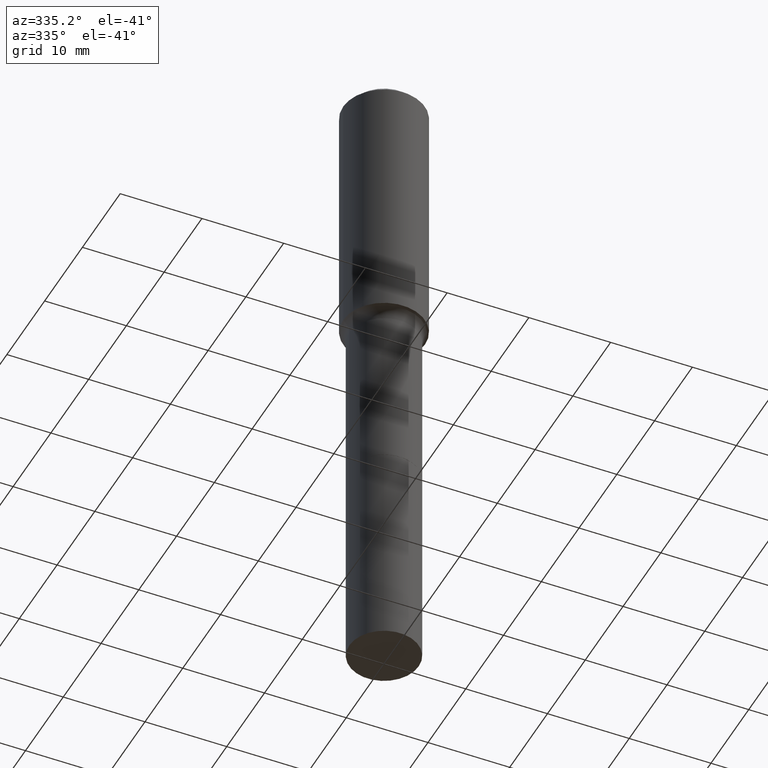
[diagram: clean part render]
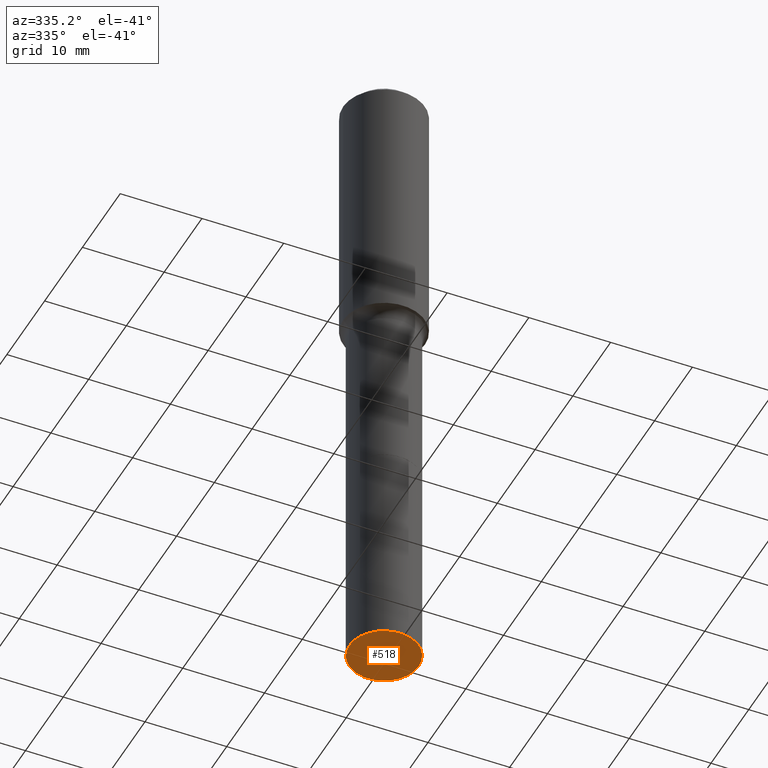
[diagram: same view with one face highlighted and labeled with its STEP entity id]
A machine part, auxiliary view. The second image highlights one B-rep face of the part: STEP entity #518.
In plain terms, the highlighted planar face has unit normal (0, -0, -1).
Its self-contained STEP definition (entity closure, byte-faithful):
#4 = ORIENTED_EDGE ( 'NONE', *, *, #29, .F. ) ;
#22 = CIRCLE ( 'NONE', #412, 0.1673000000000002263 ) ;
#23 = DIRECTION ( 'NONE',  ( 1.000000000000000000, -6.982962677686271444E-15, 0.000000000000000000 ) ) ;
#29 = EDGE_CURVE ( 'NONE', #458, #298, #22, .T. ) ;
#103 = CARTESIAN_POINT ( 'NONE',  ( 7.702248551960706711E-29, -1.099676962482037231E-14, -3.149600000000000399 ) ) ;
#151 = EDGE_LOOP ( 'NONE', ( #494, #4 ) ) ;
#157 = DIRECTION ( 'NONE',  ( 1.000000000000000000, -6.982962677686271444E-15, 0.000000000000000000 ) ) ;
#172 = DIRECTION ( 'NONE',  ( 2.438088387897960049E-29, -3.491481338843145188E-15, -1.000000000000000000 ) ) ;
#206 = CIRCLE ( 'NONE', #379, 0.1673000000000002263 ) ;
#239 = CARTESIAN_POINT ( 'NONE',  ( -0.1673000000000002263, -8.027376145083716875E-15, -3.149600000000000399 ) ) ;
#282 = CARTESIAN_POINT ( 'NONE',  ( 7.702248551960706711E-29, -1.099676962482037231E-14, -3.149600000000000399 ) ) ;
#298 = VERTEX_POINT ( 'NONE', #329 ) ;
#314 = EDGE_CURVE ( 'NONE', #298, #458, #206, .T. ) ;
#320 = DIRECTION ( 'NONE',  ( -1.000000000000000000, 6.982962677686265922E-15, -4.876176775795935793E-29 ) ) ;
#325 = PLANE ( 'NONE',  #485 ) ;
#329 = CARTESIAN_POINT ( 'NONE',  ( 0.1673000000000002263, -1.216501928079728667E-14, -3.149600000000000399 ) ) ;
#379 = AXIS2_PLACEMENT_3D ( 'NONE', #103, #381, #23 ) ;
#381 = DIRECTION ( 'NONE',  ( -2.445468806185136597E-29, 3.491481338843145583E-15, 1.000000000000000000 ) ) ;
#412 = AXIS2_PLACEMENT_3D ( 'NONE', #425, #482, #157 ) ;
#425 = CARTESIAN_POINT ( 'NONE',  ( 7.702248551960706711E-29, -1.099676962482037231E-14, -3.149600000000000399 ) ) ;
#434 = FACE_OUTER_BOUND ( 'NONE', #151, .T. ) ;
#458 = VERTEX_POINT ( 'NONE', #239 ) ;
#482 = DIRECTION ( 'NONE',  ( -2.445468806185136597E-29, 3.491481338843145583E-15, 1.000000000000000000 ) ) ;
#485 = AXIS2_PLACEMENT_3D ( 'NONE', #282, #172, #320 ) ;
#494 = ORIENTED_EDGE ( 'NONE', *, *, #314, .F. ) ;
#518 = ADVANCED_FACE ( 'NONE', ( #434 ), #325, .T. ) ;